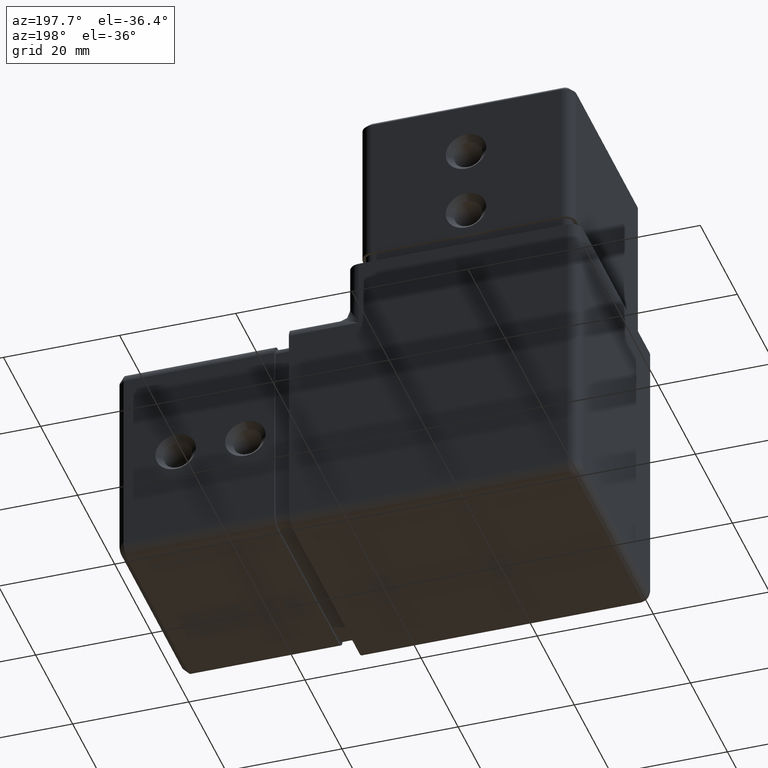
[diagram: clean part render]
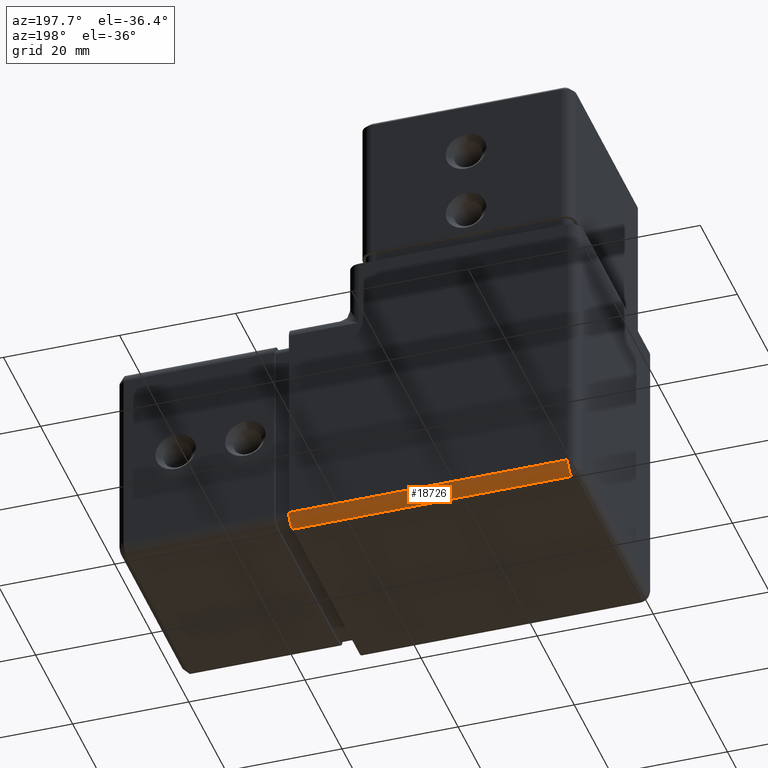
[diagram: same view with one face highlighted and labeled with its STEP entity id]
A machine part, auxiliary view. The second image highlights one B-rep face of the part: STEP entity #18726.
In plain terms, the highlighted cylindrical surface (edge-blend (fillet) strip) has radius 2 mm, axis along (1, 0, 0).
Its self-contained STEP definition (entity closure, byte-faithful):
#18 = AXIS2_PLACEMENT_3D ( 'NONE', #4874, #8032, #12547 ) ;
#314 = CYLINDRICAL_SURFACE ( 'NONE', #18294, 1.999999999999998224 ) ;
#475 = CARTESIAN_POINT ( 'NONE',  ( -22.10000000000000142, -2.000000000000000000, -18.00000000000000355 ) ) ;
#595 = VERTEX_POINT ( 'NONE', #1448 ) ;
#1231 = EDGE_CURVE ( 'NONE', #16572, #6375, #12825, .T. ) ;
#1311 = EDGE_LOOP ( 'NONE', ( #2442, #5112, #17966, #18126 ) ) ;
#1448 = CARTESIAN_POINT ( 'NONE',  ( -18.00000000000000355, -2.000000000000000000, -20.00000000000000000 ) ) ;
#1842 = CARTESIAN_POINT ( 'NONE',  ( 30.00000000000000000, -8.673617379884035472E-16, -18.00000000000000355 ) ) ;
#2194 = DIRECTION ( 'NONE',  ( 1.000000000000000000, 0.000000000000000000, -6.123233995736766036E-17 ) ) ;
#2334 = VERTEX_POINT ( 'NONE', #13331 ) ;
#2442 = ORIENTED_EDGE ( 'NONE', *, *, #6789, .F. ) ;
#4874 = CARTESIAN_POINT ( 'NONE',  ( -18.00000000000000355, -2.000000000000000000, -18.00000000000000355 ) ) ;
#5096 = DIRECTION ( 'NONE',  ( 0.000000000000000000, 0.000000000000000000, -1.000000000000000000 ) ) ;
#5112 = ORIENTED_EDGE ( 'NONE', *, *, #5544, .T. ) ;
#5544 = EDGE_CURVE ( 'NONE', #595, #16572, #12704, .T. ) ;
#5870 = VECTOR ( 'NONE', #6706, 1000.000000000000000 ) ;
#6293 = DIRECTION ( 'NONE',  ( 1.000000000000000000, 0.000000000000000000, 0.000000000000000000 ) ) ;
#6375 = VERTEX_POINT ( 'NONE', #1842 ) ;
#6614 = DIRECTION ( 'NONE',  ( 0.000000000000000000, 0.000000000000000000, -1.000000000000000000 ) ) ;
#6706 = DIRECTION ( 'NONE',  ( 1.000000000000000000, 0.000000000000000000, 0.000000000000000000 ) ) ;
#6789 = EDGE_CURVE ( 'NONE', #595, #2334, #9881, .T. ) ;
#8019 = CARTESIAN_POINT ( 'NONE',  ( -22.10000000000000142, -2.000000000000000000, -20.00000000000000000 ) ) ;
#8032 = DIRECTION ( 'NONE',  ( 1.000000000000000000, 0.000000000000000000, 0.000000000000000000 ) ) ;
#8130 = CARTESIAN_POINT ( 'NONE',  ( 30.00000000000000000, -2.000000000000000000, -18.00000000000000355 ) ) ;
#8366 = FACE_OUTER_BOUND ( 'NONE', #1311, .T. ) ;
#9299 = VECTOR ( 'NONE', #6293, 1000.000000000000000 ) ;
#9881 = LINE ( 'NONE', #8019, #5870 ) ;
#10723 = AXIS2_PLACEMENT_3D ( 'NONE', #8130, #2194, #6614 ) ;
#12293 = CIRCLE ( 'NONE', #10723, 1.999999999999998224 ) ;
#12547 = DIRECTION ( 'NONE',  ( 0.000000000000000000, 0.000000000000000000, -1.000000000000000000 ) ) ;
#12704 = CIRCLE ( 'NONE', #18, 1.999999999999998224 ) ;
#12825 = LINE ( 'NONE', #15284, #9299 ) ;
#13331 = CARTESIAN_POINT ( 'NONE',  ( 30.00000000000000000, -2.000000000000000000, -20.00000000000000000 ) ) ;
#14153 = DIRECTION ( 'NONE',  ( 1.000000000000000000, 0.000000000000000000, 0.000000000000000000 ) ) ;
#15284 = CARTESIAN_POINT ( 'NONE',  ( -22.10000000000000142, -8.673617379884035472E-16, -18.00000000000000355 ) ) ;
#16572 = VERTEX_POINT ( 'NONE', #17145 ) ;
#16990 = EDGE_CURVE ( 'NONE', #2334, #6375, #12293, .T. ) ;
#17145 = CARTESIAN_POINT ( 'NONE',  ( -18.00000000000000355, -8.673617379884035472E-16, -18.00000000000000355 ) ) ;
#17966 = ORIENTED_EDGE ( 'NONE', *, *, #1231, .T. ) ;
#18126 = ORIENTED_EDGE ( 'NONE', *, *, #16990, .F. ) ;
#18294 = AXIS2_PLACEMENT_3D ( 'NONE', #475, #14153, #5096 ) ;
#18726 = ADVANCED_FACE ( 'NONE', ( #8366 ), #314, .T. ) ;